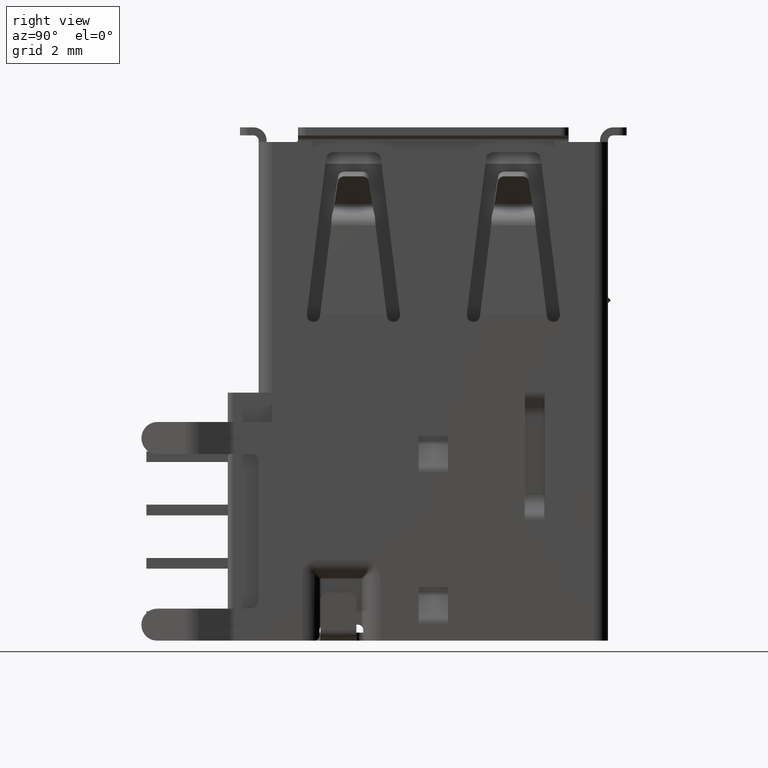
[diagram: clean part render]
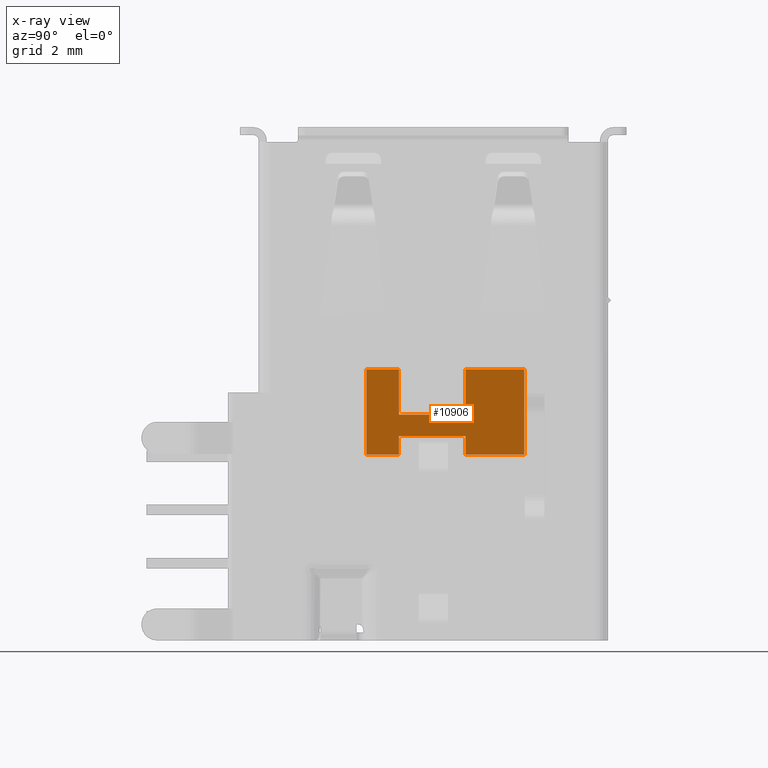
[diagram: x-ray — body ghosted, one internal face saturated and labeled with its STEP entity id]
A machine part, right view, then the same camera in x-ray: the body is ghosted and one INTERNAL B-rep face — a face not visible from any outside direction — is saturated and labeled: STEP entity #10906.
In plain terms, the highlighted planar face has unit normal (1, 0, -0).
Its self-contained STEP definition (entity closure, byte-faithful):
#1468 = DIRECTION ( 'NONE',  ( -0.0000000000000000000, 1.000000000000000000, 0.0000000000000000000 ) ) ;
#1826 = LINE ( 'NONE', #16924, #17048 ) ;
#2412 = LINE ( 'NONE', #10084, #32231 ) ;
#2417 = EDGE_CURVE ( 'NONE', #14964, #33333, #4413, .T. ) ;
#2714 = VERTEX_POINT ( 'NONE', #31158 ) ;
#2807 = DIRECTION ( 'NONE',  ( -0.0000000000000000000, 1.000000000000000000, 0.0000000000000000000 ) ) ;
#2952 = CARTESIAN_POINT ( 'NONE',  ( -10.17000000014437155, 1.209999999432687545, -5.384999999991997299 ) ) ;
#4413 = LINE ( 'NONE', #15909, #39551 ) ;
#4607 = LINE ( 'NONE', #37712, #40156 ) ;
#4790 = CARTESIAN_POINT ( 'NONE',  ( -7.669999999999999929, 1.209999999863874853, -5.384999999999999787 ) ) ;
#4919 = CARTESIAN_POINT ( 'NONE',  ( -8.570000000000003837, 1.209999999818499816, -5.384999999999999787 ) ) ;
#5054 = EDGE_CURVE ( 'NONE', #32362, #21986, #21022, .T. ) ;
#5291 = EDGE_CURVE ( 'NONE', #21986, #47436, #20026, .T. ) ;
#7144 = ORIENTED_EDGE ( 'NONE', *, *, #36744, .F. ) ;
#7344 = DIRECTION ( 'NONE',  ( 0.0000000000000000000, 0.0000000000000000000, 1.000000000000000000 ) ) ;
#8338 = CARTESIAN_POINT ( 'NONE',  ( -8.570000000000003837, 1.209999999055999975, -5.384999999999999787 ) ) ;
#10084 = CARTESIAN_POINT ( 'NONE',  ( -6.969999999156501147, 0.4475000000000000089, -5.384999999999999787 ) ) ;
#10547 = CARTESIAN_POINT ( 'NONE',  ( -10.17000000009376670, -2.515000000112500356, -5.384999999958225203 ) ) ;
#10906 = ADVANCED_FACE ( 'NONE', ( #22188 ), #22900, .F. ) ;
#11393 = ORIENTED_EDGE ( 'NONE', *, *, #34010, .F. ) ;
#11548 = CARTESIAN_POINT ( 'NONE',  ( -8.470000000000018403, 0.4475000000000000089, -5.384999999999999787 ) ) ;
#11883 = DIRECTION ( 'NONE',  ( 1.000000000000000000, 0.0000000000000000000, -0.0000000000000000000 ) ) ;
#12511 = CARTESIAN_POINT ( 'NONE',  ( -6.969999999999999751, 0.4475000000000000089, -5.384999999999999787 ) ) ;
#13482 = ORIENTED_EDGE ( 'NONE', *, *, #5054, .F. ) ;
#14855 = CARTESIAN_POINT ( 'NONE',  ( -8.470000000000032614, 1.209999999733750053, -5.385000000000065512 ) ) ;
#14964 = VERTEX_POINT ( 'NONE', #10547 ) ;
#15623 = AXIS2_PLACEMENT_3D ( 'NONE', #37074, #7344, #11883 ) ;
#15745 = LINE ( 'NONE', #30394, #28603 ) ;
#15876 = CARTESIAN_POINT ( 'NONE',  ( -6.969999999472812569, -2.515000000310875450, -5.384999999999999787 ) ) ;
#15909 = CARTESIAN_POINT ( 'NONE',  ( -10.17000000016790473, -1.902500000000000080, -5.384999999832903228 ) ) ;
#16476 = DIRECTION ( 'NONE',  ( 1.000000000000000000, 0.0000000000000000000, -0.0000000000000000000 ) ) ;
#16924 = CARTESIAN_POINT ( 'NONE',  ( -8.570000000000003837, -1.289999999927000207, -5.384999999999999787 ) ) ;
#17021 = ORIENTED_EDGE ( 'NONE', *, *, #2417, .T. ) ;
#17048 = VECTOR ( 'NONE', #35649, 1000.000000000000000 ) ;
#17416 = EDGE_LOOP ( 'NONE', ( #17021, #42784, #42610, #24036, #19957, #11393, #29640, #22150, #13482, #7144, #31195, #22786 ) ) ;
#17871 = EDGE_CURVE ( 'NONE', #37385, #22421, #15745, .T. ) ;
#19032 = VECTOR ( 'NONE', #22256, 1000.000000000000000 ) ;
#19049 = DIRECTION ( 'NONE',  ( 0.0000000000000000000, 1.000000000000000000, 0.0000000000000000000 ) ) ;
#19118 = CARTESIAN_POINT ( 'NONE',  ( -8.570000000000003837, -1.290000000484500253, -5.384999999999999787 ) ) ;
#19709 = LINE ( 'NONE', #12511, #22444 ) ;
#19957 = ORIENTED_EDGE ( 'NONE', *, *, #17871, .T. ) ;
#20026 = LINE ( 'NONE', #4919, #25264 ) ;
#21022 = LINE ( 'NONE', #35678, #47475 ) ;
#21661 = VECTOR ( 'NONE', #33402, 1000.000000000000000 ) ;
#21986 = VERTEX_POINT ( 'NONE', #4790 ) ;
#22150 = ORIENTED_EDGE ( 'NONE', *, *, #5291, .F. ) ;
#22188 = FACE_OUTER_BOUND ( 'NONE', #17416, .T. ) ;
#22256 = DIRECTION ( 'NONE',  ( -1.000000000000000000, -0.0000000000000000000, 0.0000000000000000000 ) ) ;
#22421 = VERTEX_POINT ( 'NONE', #41343 ) ;
#22444 = VECTOR ( 'NONE', #1468, 1000.000000000000000 ) ;
#22493 = CARTESIAN_POINT ( 'NONE',  ( -8.570000000000003837, 3.409999999318250374, -5.384999999999999787 ) ) ;
#22786 = ORIENTED_EDGE ( 'NONE', *, *, #44824, .F. ) ;
#22837 = DIRECTION ( 'NONE',  ( 1.000000000000000000, 0.0000000000000000000, -0.0000000000000000000 ) ) ;
#22900 = PLANE ( 'NONE',  #15623 ) ;
#23091 = VERTEX_POINT ( 'NONE', #34474 ) ;
#24036 = ORIENTED_EDGE ( 'NONE', *, *, #39446, .F. ) ;
#24090 = DIRECTION ( 'NONE',  ( 1.000000000000000000, 0.0000000000000000000, -0.0000000000000000000 ) ) ;
#24221 = DIRECTION ( 'NONE',  ( -0.0000000000000000000, 1.000000000000000000, 0.0000000000000000000 ) ) ;
#25264 = VECTOR ( 'NONE', #24090, 1000.000000000000000 ) ;
#26012 = VECTOR ( 'NONE', #16476, 1000.000000000000000 ) ;
#26302 = EDGE_CURVE ( 'NONE', #42023, #2714, #43463, .T. ) ;
#26553 = LINE ( 'NONE', #19118, #31321 ) ;
#28603 = VECTOR ( 'NONE', #45019, 1000.000000000000000 ) ;
#29640 = ORIENTED_EDGE ( 'NONE', *, *, #43790, .F. ) ;
#30394 = CARTESIAN_POINT ( 'NONE',  ( -10.17000000003290516, 2.310000000000000053, -5.384999999967903683 ) ) ;
#31158 = CARTESIAN_POINT ( 'NONE',  ( -8.470000000000053930, -1.289999999765000016, -5.385000000000108145 ) ) ;
#31195 = ORIENTED_EDGE ( 'NONE', *, *, #40727, .F. ) ;
#31321 = VECTOR ( 'NONE', #37111, 1000.000000000000000 ) ;
#32231 = VECTOR ( 'NONE', #24221, 1000.000000000000000 ) ;
#32362 = VERTEX_POINT ( 'NONE', #45198 ) ;
#33333 = VERTEX_POINT ( 'NONE', #43500 ) ;
#33402 = DIRECTION ( 'NONE',  ( 0.0000000000000000000, -1.000000000000000000, -0.0000000000000000000 ) ) ;
#34010 = EDGE_CURVE ( 'NONE', #36657, #22421, #47473, .T. ) ;
#34474 = CARTESIAN_POINT ( 'NONE',  ( -6.969999999789124878, -1.290000000363375143, -5.384999999999999787 ) ) ;
#35649 = DIRECTION ( 'NONE',  ( -1.000000000000000000, -0.0000000000000000000, 0.0000000000000000000 ) ) ;
#35678 = CARTESIAN_POINT ( 'NONE',  ( -7.669999999999999929, 0.4475000000000000089, -5.384999999999999787 ) ) ;
#36657 = VERTEX_POINT ( 'NONE', #43355 ) ;
#36744 = EDGE_CURVE ( 'NONE', #23091, #32362, #26553, .T. ) ;
#37074 = CARTESIAN_POINT ( 'NONE',  ( -8.570000000000003837, 0.4475000000000000089, -5.384999999999999787 ) ) ;
#37111 = DIRECTION ( 'NONE',  ( -1.000000000000000000, -0.0000000000000000000, 0.0000000000000000000 ) ) ;
#37385 = VERTEX_POINT ( 'NONE', #2952 ) ;
#37712 = CARTESIAN_POINT ( 'NONE',  ( -8.570000000000003837, -2.515000000150000581, -5.384999999999999787 ) ) ;
#38074 = LINE ( 'NONE', #8338, #26012 ) ;
#39446 = EDGE_CURVE ( 'NONE', #37385, #42023, #38074, .T. ) ;
#39551 = VECTOR ( 'NONE', #19049, 1000.000000000000000 ) ;
#40156 = VECTOR ( 'NONE', #22837, 1000.000000000000000 ) ;
#40727 = EDGE_CURVE ( 'NONE', #44823, #23091, #2412, .T. ) ;
#41343 = CARTESIAN_POINT ( 'NONE',  ( -10.17000000027054263, 3.409999999772750368, -5.384999999991975095 ) ) ;
#42023 = VERTEX_POINT ( 'NONE', #14855 ) ;
#42610 = ORIENTED_EDGE ( 'NONE', *, *, #26302, .F. ) ;
#42674 = EDGE_CURVE ( 'NONE', #2714, #33333, #1826, .T. ) ;
#42784 = ORIENTED_EDGE ( 'NONE', *, *, #42674, .F. ) ;
#43355 = CARTESIAN_POINT ( 'NONE',  ( -6.969999999999999751, 3.409999999488687816, -5.384999999999999787 ) ) ;
#43463 = LINE ( 'NONE', #11548, #21661 ) ;
#43500 = CARTESIAN_POINT ( 'NONE',  ( -10.17000000001736915, -1.289999999945249831, -5.384999999958268724 ) ) ;
#43790 = EDGE_CURVE ( 'NONE', #47436, #36657, #19709, .T. ) ;
#44823 = VERTEX_POINT ( 'NONE', #15876 ) ;
#44824 = EDGE_CURVE ( 'NONE', #14964, #44823, #4607, .T. ) ;
#45019 = DIRECTION ( 'NONE',  ( 0.0000000000000000000, 1.000000000000000000, 0.0000000000000000000 ) ) ;
#45198 = CARTESIAN_POINT ( 'NONE',  ( -7.669999999999999929, -1.290000000121125145, -5.384999999999999787 ) ) ;
#45456 = CARTESIAN_POINT ( 'NONE',  ( -6.969999999999999751, 1.209999999806687265, -5.384999999999999787 ) ) ;
#47436 = VERTEX_POINT ( 'NONE', #45456 ) ;
#47473 = LINE ( 'NONE', #22493, #19032 ) ;
#47475 = VECTOR ( 'NONE', #2807, 1000.000000000000000 ) ;